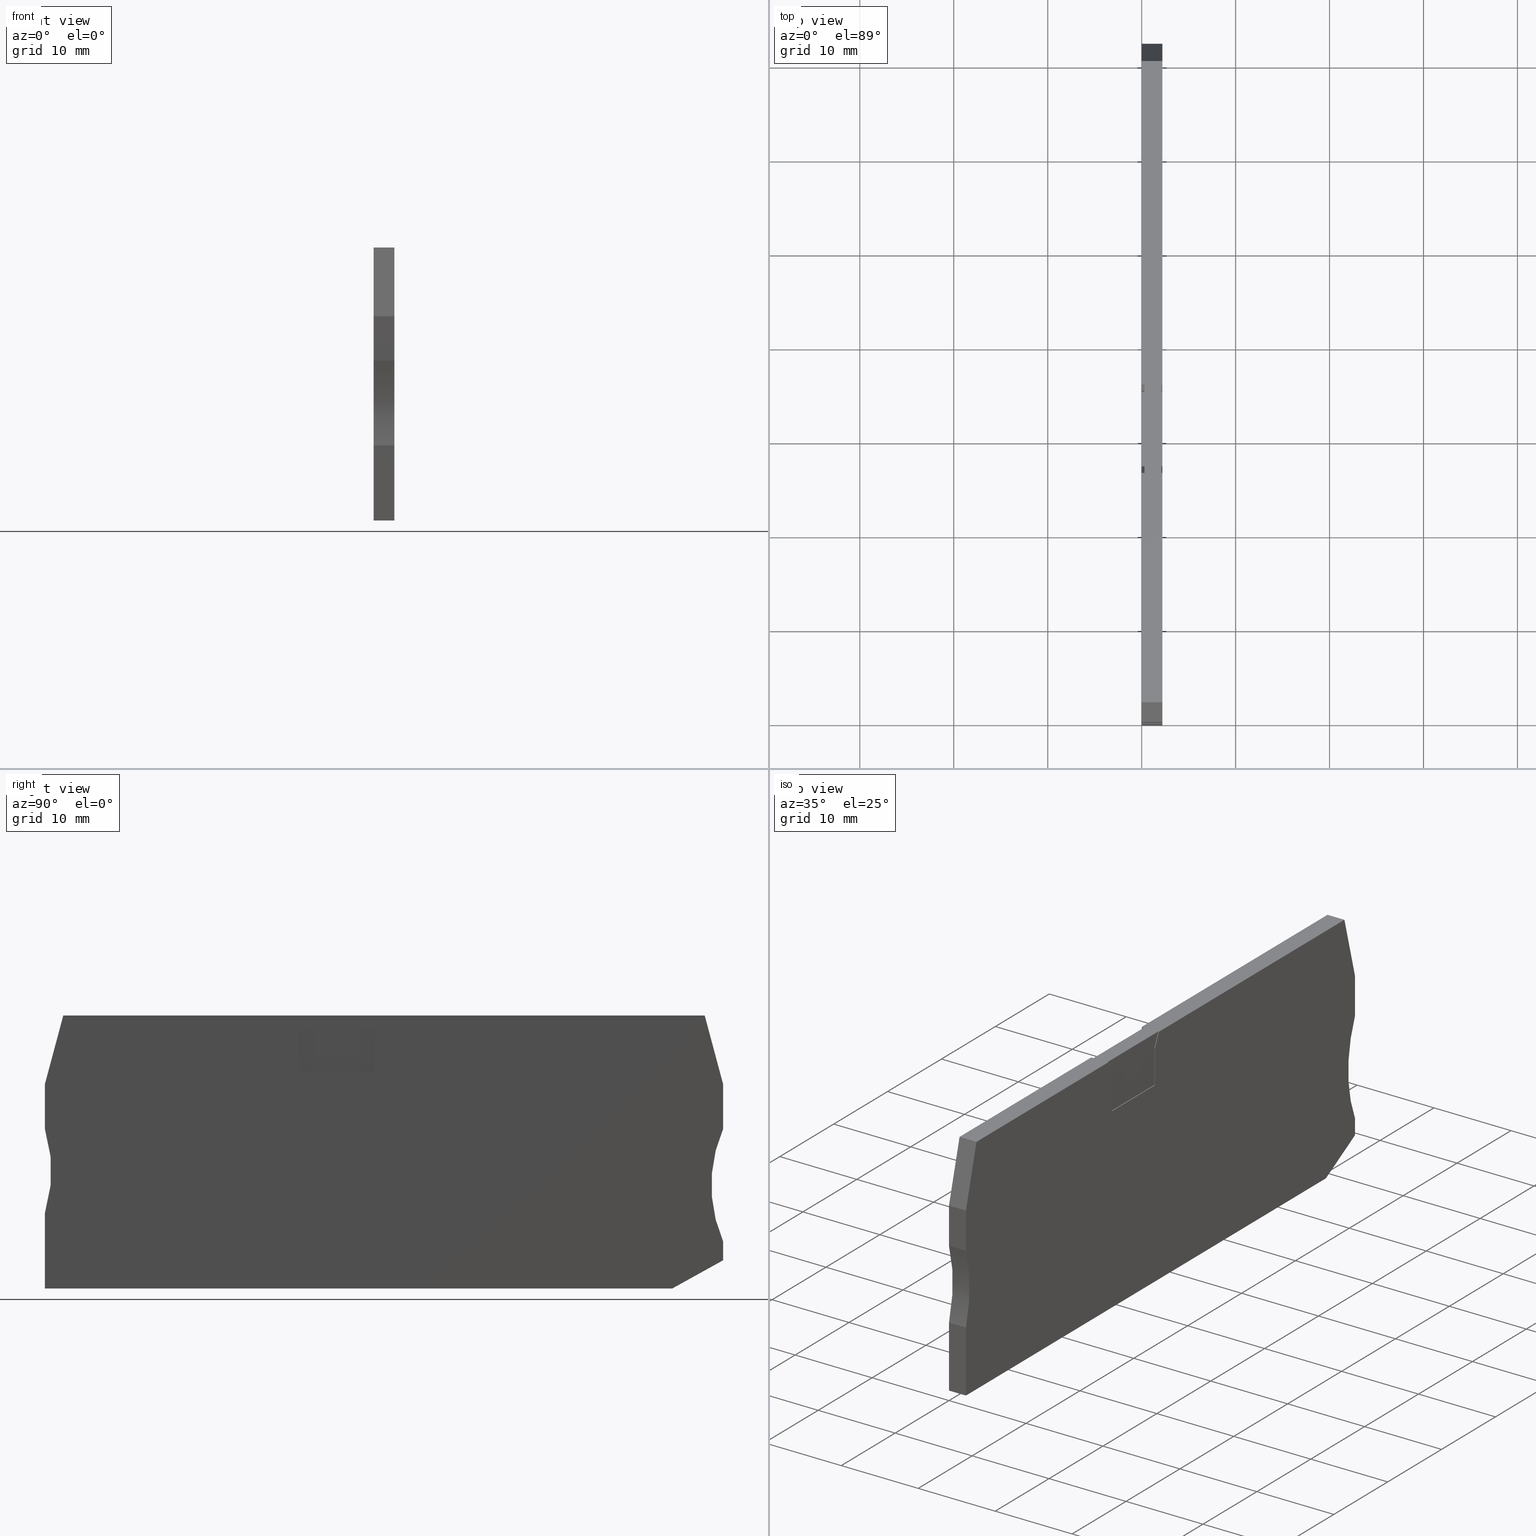
[diagram: canonical four-view strip — front | top / right | iso, engineering-drawing reading convention]
A machine part, canonical four-view strip (front | top / right | iso — engineering-drawing reading convention). The complete STEP part file that produces these views, byte-faithful:
ISO-10303-21;
HEADER;
FILE_DESCRIPTION(('Creo Elements/Direct Modeling STEP Export'),'2;1');
FILE_NAME(
'D:/temp/JobSpoolerServerData/JobServer Files/cc79d442-5544-4a44-942c-a4
7eb3544284/work/output/model.stp','2018-03-19T14:02:13',(''),(''),
'Creo Elements/Direct Modeling STEP processor for AP214 (Solid Model)',
'Creo Elements/Direct Modeling 18.1I  14-Aug-2016 (C) Parametric Technol
ogy GmbH','');
FILE_SCHEMA(('AUTOMOTIVE_DESIGN { 1 0 10303 214 1 1 1 1 }'));
ENDSEC;
DATA;
#10=CARTESIAN_POINT('',(-7.06783277832365,-15.1500000000019,53.17));
#20=DIRECTION('',(-1.,-8.65973959207633E-15,-0.));
#30=DIRECTION('',(-8.65973959207633E-15,1.,0.));
#40=AXIS2_PLACEMENT_3D('',#10,#20,#30);
#50=PLANE('',#40);
#60=CARTESIAN_POINT('',(-7.06783277832367,-12.1300507694265,53.17));
#70=DIRECTION('',(-8.65973959207633E-15,1.,0.));
#80=VECTOR('',#70,1.);
#90=LINE('',#60,#80);
#100=CARTESIAN_POINT('',(-7.06783277832365,-15.1500000000019,53.17));
#110=VERTEX_POINT('',#100);
#120=CARTESIAN_POINT('',(-7.06783277832368,-10.8500000000052,53.17));
#130=VERTEX_POINT('',#120);
#140=EDGE_CURVE('',#110,#130,#90,.T.);
#150=ORIENTED_EDGE('',*,*,#140,.T.);
#160=CARTESIAN_POINT('',(-7.06783277832365,-15.1500000000019,53.17));
#170=DIRECTION('',(0.,0.,1.));
#180=VECTOR('',#170,1.);
#190=LINE('',#160,#180);
#200=CARTESIAN_POINT('',(-7.06783277832365,-15.1500000000019,53.47));
#210=VERTEX_POINT('',#200);
#220=EDGE_CURVE('',#110,#210,#190,.T.);
#230=ORIENTED_EDGE('',*,*,#220,.F.);
#240=CARTESIAN_POINT('',(-7.06783277832368,-12.1300507694268,53.47));
#250=DIRECTION('',(-8.65973959207633E-15,1.,0.));
#260=VECTOR('',#250,1.);
#270=LINE('',#240,#260);
#280=CARTESIAN_POINT('',(-7.06783277832368,-10.8500000000052,53.47));
#290=VERTEX_POINT('',#280);
#300=EDGE_CURVE('',#210,#290,#270,.T.);
#310=ORIENTED_EDGE('',*,*,#300,.F.);
#320=CARTESIAN_POINT('',(-7.06783277832368,-10.8500000000052,53.17));
#330=DIRECTION('',(0.,0.,1.));
#340=VECTOR('',#330,1.);
#350=LINE('',#320,#340);
#360=EDGE_CURVE('',#130,#290,#350,.T.);
#370=ORIENTED_EDGE('',*,*,#360,.T.);
#380=EDGE_LOOP('',(#370,#310,#230,#150));
#390=FACE_OUTER_BOUND('',#380,.T.);
#400=ADVANCED_FACE('',(#390),#50,.F.);
#410=COLOUR_RGB('',0.560784339904785,0.588235318660736,0.600000023841858
);
#420=FILL_AREA_STYLE_COLOUR('',#410);
#430=FILL_AREA_STYLE('',(#420));
#440=SURFACE_STYLE_FILL_AREA(#430);
#450=SURFACE_SIDE_STYLE('',(#440));
#460=SURFACE_STYLE_USAGE(.BOTH.,#450);
#470=PRESENTATION_STYLE_ASSIGNMENT((#460));
#480=CARTESIAN_POINT('',(-4.68088356410453,-22.3521492060807,55.37));
#490=DIRECTION('',(0.,0.,-1.));
#500=DIRECTION('',(-1.,0.,0.));
#510=AXIS2_PLACEMENT_3D('',#480,#490,#500);
#520=PLANE('',#510);
#530=CARTESIAN_POINT('',(38.0321672216756,-12.1300507694265,55.37));
#540=DIRECTION('',(0.,1.,0.));
#550=VECTOR('',#540,1.);
#560=LINE('',#530,#550);
#570=CARTESIAN_POINT('',(38.0321672216756,-21.2000000000027,55.37));
#580=VERTEX_POINT('',#570);
#590=CARTESIAN_POINT('',(38.0321672216756,-16.4655444566078,55.37));
#600=VERTEX_POINT('',#590);
#610=EDGE_CURVE('',#580,#600,#560,.T.);
#620=ORIENTED_EDGE('',*,*,#610,.T.);
#630=CARTESIAN_POINT('',(51.7798943065431,-27.2000000000027,55.37));
#640=DIRECTION('',(0.,0.,1.));
#650=DIRECTION('',(1.,0.,0.));
#660=AXIS2_PLACEMENT_3D('',#630,#640,#650);
#670=CIRCLE('',#660,15.);
#680=CARTESIAN_POINT('',(38.0321672216756,-33.2000000000027,55.37));
#690=VERTEX_POINT('',#680);
#700=EDGE_CURVE('',#580,#690,#670,.T.);
#710=ORIENTED_EDGE('',*,*,#700,.F.);
#720=CARTESIAN_POINT('',(38.0321672216756,-12.1300507694265,55.37));
#730=DIRECTION('',(0.,1.,0.));
#740=VECTOR('',#730,1.);
#750=LINE('',#720,#740);
#760=CARTESIAN_POINT('',(38.0321672216756,-35.2,55.37));
#770=VERTEX_POINT('',#760);
#780=EDGE_CURVE('',#770,#690,#750,.T.);
#790=ORIENTED_EDGE('',*,*,#780,.T.);
#800=CARTESIAN_POINT('',(11.4461541156283,-49.9500920346874,55.37));
#810=DIRECTION('',(0.874435210897321,0.485142311021165,0.));
#820=VECTOR('',#810,1.);
#830=LINE('',#800,#820);
#840=CARTESIAN_POINT('',(32.6248762616859,-38.2000000000015,55.37));
#850=VERTEX_POINT('',#840);
#860=EDGE_CURVE('',#850,#770,#830,.T.);
#870=ORIENTED_EDGE('',*,*,#860,.T.);
#880=CARTESIAN_POINT('',(11.4461541156283,-38.2000000000015,55.37));
#890=DIRECTION('',(1.,0.,0.));
#900=VECTOR('',#890,1.);
#910=LINE('',#880,#900);
#920=CARTESIAN_POINT('',(-34.1678327783247,-38.2000000000015,55.37));
#930=VERTEX_POINT('',#920);
#940=EDGE_CURVE('',#930,#850,#910,.T.);
#950=ORIENTED_EDGE('',*,*,#940,.T.);
#960=CARTESIAN_POINT('',(-34.1678327783247,-12.1300507694265,55.37));
#970=DIRECTION('',(0.,-1.,0.));
#980=VECTOR('',#970,1.);
#990=LINE('',#960,#980);
#1000=CARTESIAN_POINT('',(-34.1678327783247,-30.2000000000027,55.37));
#1010=VERTEX_POINT('',#1000);
#1020=EDGE_CURVE('',#1010,#930,#990,.T.);
#1030=ORIENTED_EDGE('',*,*,#1020,.T.);
#1040=CARTESIAN_POINT('',(-48.4769207995789,-25.7000000000027,55.37));
#1050=DIRECTION('',(0.,0.,1.));
#1060=DIRECTION('',(1.,0.,0.));
#1070=AXIS2_PLACEMENT_3D('',#1040,#1050,#1060);
#1080=CIRCLE('',#1070,15.);
#1090=CARTESIAN_POINT('',(-34.1678327783247,-21.2000000000028,55.37));
#1100=VERTEX_POINT('',#1090);
#1110=EDGE_CURVE('',#1010,#1100,#1080,.T.);
#1120=ORIENTED_EDGE('',*,*,#1110,.F.);
#1130=CARTESIAN_POINT('',(-34.1678327783247,-12.1300507694265,55.37));
#1140=DIRECTION('',(0.,-1.,0.));
#1150=VECTOR('',#1140,1.);
#1160=LINE('',#1130,#1150);
#1170=CARTESIAN_POINT('',(-34.1678327783247,-16.4655444566093,55.37));
#1180=VERTEX_POINT('',#1170);
#1190=EDGE_CURVE('',#1180,#1100,#1160,.T.);
#1200=ORIENTED_EDGE('',*,*,#1190,.T.);
#1210=CARTESIAN_POINT('',(-33.0061407460509,-12.1300507694265,55.37));
#1220=DIRECTION('',(-0.258819045103118,-0.965925826288908,0.));
#1230=VECTOR('',#1220,1.);
#1240=LINE('',#1210,#1230);
#1250=CARTESIAN_POINT('',(-32.2076385489778,-9.15000000000164,55.37));
#1260=VERTEX_POINT('',#1250);
#1270=EDGE_CURVE('',#1260,#1180,#1240,.T.);
#1280=ORIENTED_EDGE('',*,*,#1270,.T.);
#1290=CARTESIAN_POINT('',(11.4461541156283,-9.15000000000164,55.37));
#1300=DIRECTION('',(-1.,0.,0.));
#1310=VECTOR('',#1300,1.);
#1320=LINE('',#1290,#1310);
#1330=CARTESIAN_POINT('',(-7.78633249760507,-9.15000000000164,55.37));
#1340=VERTEX_POINT('',#1330);
#1350=EDGE_CURVE('',#1340,#1260,#1320,.T.);
#1360=ORIENTED_EDGE('',*,*,#1350,.T.);
#1370=CARTESIAN_POINT('',(-6.52682329685711,-12.1300507694265,55.37));
#1380=DIRECTION('',(0.389303997086196,-0.92110933002153,0.));
#1390=VECTOR('',#1380,1.);
#1400=LINE('',#1370,#1390);
#1410=CARTESIAN_POINT('',(-7.06783277832368,-10.8500000000052,55.37));
#1420=VERTEX_POINT('',#1410);
#1430=EDGE_CURVE('',#1340,#1420,#1400,.T.);
#1440=ORIENTED_EDGE('',*,*,#1430,.F.);
#1450=CARTESIAN_POINT('',(-7.06783277832367,-12.1300507694265,55.37));
#1460=DIRECTION('',(8.65973959207633E-15,-1.,0.));
#1470=VECTOR('',#1460,1.);
#1480=LINE('',#1450,#1470);
#1490=CARTESIAN_POINT('',(-7.06783277832365,-15.1500000000019,55.37));
#1500=VERTEX_POINT('',#1490);
#1510=EDGE_CURVE('',#1420,#1500,#1480,.T.);
#1520=ORIENTED_EDGE('',*,*,#1510,.F.);
#1530=CARTESIAN_POINT('',(11.4461541156283,-15.1500000000019,55.37));
#1540=DIRECTION('',(1.,-5.55111512312593E-16,0.));
#1550=VECTOR('',#1540,1.);
#1560=LINE('',#1530,#1550);
#1570=CARTESIAN_POINT('',(0.932167221676103,-15.1500000000019,55.37));
#1580=VERTEX_POINT('',#1570);
#1590=EDGE_CURVE('',#1500,#1580,#1560,.T.);
#1600=ORIENTED_EDGE('',*,*,#1590,.F.);
#1610=CARTESIAN_POINT('',(0.932167221676107,-12.1300507694265,55.37));
#1620=DIRECTION('',(1.05471187339379E-15,1.,0.));
#1630=VECTOR('',#1620,1.);
#1640=LINE('',#1610,#1630);
#1650=CARTESIAN_POINT('',(0.932167221676108,-10.8499999999525,55.37));
#1660=VERTEX_POINT('',#1650);
#1670=EDGE_CURVE('',#1580,#1660,#1640,.T.);
#1680=ORIENTED_EDGE('',*,*,#1670,.F.);
#1690=CARTESIAN_POINT('',(0.391157740167616,-12.1300507694265,55.37));
#1700=DIRECTION('',(0.389303997098189,0.921109330016461,0.));
#1710=VECTOR('',#1700,1.);
#1720=LINE('',#1690,#1710);
#1730=CARTESIAN_POINT('',(1.65066694096131,-9.15000000000164,55.37));
#1740=VERTEX_POINT('',#1730);
#1750=EDGE_CURVE('',#1660,#1740,#1720,.T.);
#1760=ORIENTED_EDGE('',*,*,#1750,.F.);
#1770=CARTESIAN_POINT('',(36.0719729923292,-9.15000000000164,55.37));
#1780=VERTEX_POINT('',#1770);
#1790=EDGE_CURVE('',#1780,#1740,#1320,.T.);
#1800=ORIENTED_EDGE('',*,*,#1790,.T.);
#1810=CARTESIAN_POINT('',(36.8704751894023,-12.1300507694265,55.37));
#1820=DIRECTION('',(-0.258819045103111,0.96592582628891,0.));
#1830=VECTOR('',#1820,1.);
#1840=LINE('',#1810,#1830);
#1850=EDGE_CURVE('',#600,#1780,#1840,.T.);
#1860=ORIENTED_EDGE('',*,*,#1850,.T.);
#1870=EDGE_LOOP('',(#1860,#1800,#1760,#1680,#1600,#1520,#1440,#1360,
#1280,#1200,#1120,#1030,#950,#870,#790,#710,#620));
#1880=FACE_OUTER_BOUND('',#1870,.T.);
#1890=ADVANCED_FACE('',(#1880),#520,.F.);
#1900=COLOUR_RGB('',0.560784339904785,0.588235318660736,
0.600000023841858);
#1910=FILL_AREA_STYLE_COLOUR('',#1900);
#1920=FILL_AREA_STYLE('',(#1910));
#1930=SURFACE_STYLE_FILL_AREA(#1920);
#1940=SURFACE_SIDE_STYLE('',(#1930));
#1950=SURFACE_STYLE_USAGE(.BOTH.,#1940);
#1960=PRESENTATION_STYLE_ASSIGNMENT((#1950));
#1970=CARTESIAN_POINT('',(0.932167221676108,-10.8499999999525,53.17));
#1980=DIRECTION('',(1.,-1.05471187339379E-15,0.));
#1990=DIRECTION('',(-1.05471187339379E-15,-1.,0.));
#2000=AXIS2_PLACEMENT_3D('',#1970,#1980,#1990);
#2010=PLANE('',#2000);
#2020=CARTESIAN_POINT('',(0.932167221676107,-12.1300507694265,53.17));
#2030=DIRECTION('',(-1.05471187339379E-15,-1.,0.));
#2040=VECTOR('',#2030,1.);
#2050=LINE('',#2020,#2040);
#2060=CARTESIAN_POINT('',(0.932167221676108,-10.8499999999525,53.17));
#2070=VERTEX_POINT('',#2060);
#2080=CARTESIAN_POINT('',(0.932167221676103,-15.1500000000019,53.17));
#2090=VERTEX_POINT('',#2080);
#2100=EDGE_CURVE('',#2070,#2090,#2050,.T.);
#2110=ORIENTED_EDGE('',*,*,#2100,.T.);
#2120=CARTESIAN_POINT('',(0.932167221676108,-10.8499999999525,53.17));
#2130=DIRECTION('',(0.,0.,1.));
#2140=VECTOR('',#2130,1.);
#2150=LINE('',#2120,#2140);
#2160=CARTESIAN_POINT('',(0.932167221676108,-10.8499999999525,53.47));
#2170=VERTEX_POINT('',#2160);
#2180=EDGE_CURVE('',#2070,#2170,#2150,.T.);
#2190=ORIENTED_EDGE('',*,*,#2180,.F.);
#2200=CARTESIAN_POINT('',(0.932167221676098,-12.1300507694268,53.47));
#2210=DIRECTION('',(-1.05471187339379E-15,-1.,0.));
#2220=VECTOR('',#2210,1.);
#2230=LINE('',#2200,#2220);
#2240=CARTESIAN_POINT('',(0.932167221676094,-15.1500000000019,53.47));
#2250=VERTEX_POINT('',#2240);
#2260=EDGE_CURVE('',#2170,#2250,#2230,.T.);
#2270=ORIENTED_EDGE('',*,*,#2260,.F.);
#2280=CARTESIAN_POINT('',(0.932167221676094,-15.1500000000019,53.17));
#2290=DIRECTION('',(0.,0.,1.));
#2300=VECTOR('',#2290,1.);
#2310=LINE('',#2280,#2300);
#2320=EDGE_CURVE('',#2090,#2250,#2310,.T.);
#2330=ORIENTED_EDGE('',*,*,#2320,.T.);
#2340=EDGE_LOOP('',(#2330,#2270,#2190,#2110));
#2350=FACE_OUTER_BOUND('',#2340,.T.);
#2360=ADVANCED_FACE('',(#2350),#2010,.F.);
#2370=COLOUR_RGB('',0.560784339904785,0.588235318660736,
0.600000023841858);
#2380=FILL_AREA_STYLE_COLOUR('',#2370);
#2390=FILL_AREA_STYLE('',(#2380));
#2400=SURFACE_STYLE_FILL_AREA(#2390);
#2410=SURFACE_SIDE_STYLE('',(#2400));
#2420=SURFACE_STYLE_USAGE(.BOTH.,#2410);
#2430=PRESENTATION_STYLE_ASSIGNMENT((#2420));
#2440=CARTESIAN_POINT('',(1.65066694096119,-9.15000000000193,53.17));
#2450=DIRECTION('',(0.921109330016461,-0.389303997098189,0.));
#2460=DIRECTION('',(-0.389303997098189,-0.921109330016461,0.));
#2470=AXIS2_PLACEMENT_3D('',#2440,#2450,#2460);
#2480=PLANE('',#2470);
#2490=CARTESIAN_POINT('',(0.391157740167616,-12.1300507694265,53.17));
#2500=DIRECTION('',(-0.389303997098189,-0.921109330016461,0.));
#2510=VECTOR('',#2500,1.);
#2520=LINE('',#2490,#2510);
#2530=CARTESIAN_POINT('',(1.65066694096119,-9.15000000000164,53.17));
#2540=VERTEX_POINT('',#2530);
#2550=EDGE_CURVE('',#2540,#2070,#2520,.T.);
#2560=ORIENTED_EDGE('',*,*,#2550,.T.);
#2570=CARTESIAN_POINT('',(1.65066694096131,-9.15000000000164,53.17));
#2580=DIRECTION('',(0.,0.,-1.));
#2590=VECTOR('',#2580,1.);
#2600=LINE('',#2570,#2590);
#2610=CARTESIAN_POINT('',(1.65066694096119,-9.15000000000164,53.47));
#2620=VERTEX_POINT('',#2610);
#2630=EDGE_CURVE('',#2620,#2540,#2600,.T.);
#2640=ORIENTED_EDGE('',*,*,#2630,.T.);
#2650=CARTESIAN_POINT('',(0.391157740167493,-12.1300507694268,53.47));
#2660=DIRECTION('',(0.389303997098189,0.921109330016461,0.));
#2670=VECTOR('',#2660,1.);
#2680=LINE('',#2650,#2670);
#2690=EDGE_CURVE('',#2170,#2620,#2680,.T.);
#2700=ORIENTED_EDGE('',*,*,#2690,.T.);
#2710=ORIENTED_EDGE('',*,*,#2180,.T.);
#2720=EDGE_LOOP('',(#2710,#2700,#2640,#2560));
#2730=FACE_OUTER_BOUND('',#2720,.T.);
#2740=ADVANCED_FACE('',(#2730),#2480,.F.);
#2750=COLOUR_RGB('',0.560784339904785,0.588235318660736,
0.600000023841858);
#2760=FILL_AREA_STYLE_COLOUR('',#2750);
#2770=FILL_AREA_STYLE('',(#2760));
#2780=SURFACE_STYLE_FILL_AREA(#2770);
#2790=SURFACE_SIDE_STYLE('',(#2780));
#2800=SURFACE_STYLE_USAGE(.BOTH.,#2790);
#2810=PRESENTATION_STYLE_ASSIGNMENT((#2800));
#2820=CARTESIAN_POINT('',(-34.1678327783247,-30.4972542057941,55.37));
#2830=DIRECTION('',(-1.,0.,0.));
#2840=DIRECTION('',(0.,1.,0.));
#2850=AXIS2_PLACEMENT_3D('',#2820,#2830,#2840);
#2860=PLANE('',#2850);
#2870=CARTESIAN_POINT('',(-34.1678327783247,-38.2000000000015,53.17));
#2880=DIRECTION('',(0.,0.,1.));
#2890=VECTOR('',#2880,1.);
#2900=LINE('',#2870,#2890);
#2910=CARTESIAN_POINT('',(-34.1678327783247,-38.2000000000015,53.17));
#2920=VERTEX_POINT('',#2910);
#2930=EDGE_CURVE('',#2920,#930,#2900,.T.);
#2940=ORIENTED_EDGE('',*,*,#2930,.T.);
#2950=CARTESIAN_POINT('',(-34.1678327783247,-12.1300507694265,53.17));
#2960=DIRECTION('',(0.,1.,0.));
#2970=VECTOR('',#2960,1.);
#2980=LINE('',#2950,#2970);
#2990=CARTESIAN_POINT('',(-34.1678327783247,-30.2000000000027,53.17));
#3000=VERTEX_POINT('',#2990);
#3010=EDGE_CURVE('',#2920,#3000,#2980,.T.);
#3020=ORIENTED_EDGE('',*,*,#3010,.F.);
#3030=CARTESIAN_POINT('',(-34.1678327783247,-30.2000000000027,55.37));
#3040=DIRECTION('',(0.,0.,1.));
#3050=VECTOR('',#3040,1.);
#3060=LINE('',#3030,#3050);
#3070=EDGE_CURVE('',#3000,#1010,#3060,.T.);
#3080=ORIENTED_EDGE('',*,*,#3070,.F.);
#3090=ORIENTED_EDGE('',*,*,#1020,.F.);
#3100=EDGE_LOOP('',(#3090,#3080,#3020,#2940));
#3110=FACE_OUTER_BOUND('',#3100,.T.);
#3120=ADVANCED_FACE('',(#3110),#2860,.T.);
#3130=COLOUR_RGB('',0.560784339904785,0.588235318660736,
0.600000023841858);
#3140=FILL_AREA_STYLE_COLOUR('',#3130);
#3150=FILL_AREA_STYLE('',(#3140));
#3160=SURFACE_STYLE_FILL_AREA(#3150);
#3170=SURFACE_SIDE_STYLE('',(#3160));
#3180=SURFACE_STYLE_USAGE(.BOTH.,#3170);
#3190=PRESENTATION_STYLE_ASSIGNMENT((#3180));
#3200=CARTESIAN_POINT('',(-48.4769207995789,-25.7000000000027,55.37));
#3210=DIRECTION('',(0.,0.,1.));
#3220=DIRECTION('',(1.,0.,0.));
#3230=AXIS2_PLACEMENT_3D('',#3200,#3210,#3220);
#3240=CYLINDRICAL_SURFACE('',#3230,15.);
#3250=ORIENTED_EDGE('',*,*,#3070,.T.);
#3260=CARTESIAN_POINT('',(-48.4769207995789,-25.7000000000027,53.17));
#3270=DIRECTION('',(0.,0.,1.));
#3280=DIRECTION('',(1.,0.,0.));
#3290=AXIS2_PLACEMENT_3D('',#3260,#3270,#3280);
#3300=CIRCLE('',#3290,15.);
#3310=CARTESIAN_POINT('',(-34.1678327783247,-21.2000000000028,53.17));
#3320=VERTEX_POINT('',#3310);
#3330=EDGE_CURVE('',#3000,#3320,#3300,.T.);
#3340=ORIENTED_EDGE('',*,*,#3330,.F.);
#3350=CARTESIAN_POINT('',(-34.1678327783247,-21.2000000000028,55.37));
#3360=DIRECTION('',(0.,0.,1.));
#3370=VECTOR('',#3360,1.);
#3380=LINE('',#3350,#3370);
#3390=EDGE_CURVE('',#3320,#1100,#3380,.T.);
#3400=ORIENTED_EDGE('',*,*,#3390,.F.);
#3410=ORIENTED_EDGE('',*,*,#1110,.T.);
#3420=EDGE_LOOP('',(#3410,#3400,#3340,#3250));
#3430=FACE_OUTER_BOUND('',#3420,.T.);
#3440=ADVANCED_FACE('',(#3430),#3240,.F.);
#3450=COLOUR_RGB('',0.560784339904785,0.588235318660736,
0.600000023841858);
#3460=FILL_AREA_STYLE_COLOUR('',#3450);
#3470=FILL_AREA_STYLE('',(#3460));
#3480=SURFACE_STYLE_FILL_AREA(#3470);
#3490=SURFACE_SIDE_STYLE('',(#3480));
#3500=SURFACE_STYLE_USAGE(.BOTH.,#3490);
#3510=PRESENTATION_STYLE_ASSIGNMENT((#3500));
#3520=CARTESIAN_POINT('',(51.7798943065431,-27.2000000000027,55.37));
#3530=DIRECTION('',(0.,0.,1.));
#3540=DIRECTION('',(1.,0.,0.));
#3550=AXIS2_PLACEMENT_3D('',#3520,#3530,#3540);
#3560=CYLINDRICAL_SURFACE('',#3550,15.);
#3570=CARTESIAN_POINT('',(38.0321672216756,-21.2000000000027,55.37));
#3580=DIRECTION('',(0.,0.,1.));
#3590=VECTOR('',#3580,1.);
#3600=LINE('',#3570,#3590);
#3610=CARTESIAN_POINT('',(38.0321672216756,-21.2000000000027,53.17));
#3620=VERTEX_POINT('',#3610);
#3630=EDGE_CURVE('',#3620,#580,#3600,.T.);
#3640=ORIENTED_EDGE('',*,*,#3630,.T.);
#3650=CARTESIAN_POINT('',(51.7798943065431,-27.2000000000027,53.17));
#3660=DIRECTION('',(0.,0.,1.));
#3670=DIRECTION('',(1.,0.,0.));
#3680=AXIS2_PLACEMENT_3D('',#3650,#3660,#3670);
#3690=CIRCLE('',#3680,15.);
#3700=CARTESIAN_POINT('',(38.0321672216756,-33.2000000000027,53.17));
#3710=VERTEX_POINT('',#3700);
#3720=EDGE_CURVE('',#3620,#3710,#3690,.T.);
#3730=ORIENTED_EDGE('',*,*,#3720,.F.);
#3740=CARTESIAN_POINT('',(38.0321672216756,-33.2000000000027,55.37));
#3750=DIRECTION('',(0.,0.,1.));
#3760=VECTOR('',#3750,1.);
#3770=LINE('',#3740,#3760);
#3780=EDGE_CURVE('',#3710,#690,#3770,.T.);
#3790=ORIENTED_EDGE('',*,*,#3780,.F.);
#3800=ORIENTED_EDGE('',*,*,#700,.T.);
#3810=EDGE_LOOP('',(#3800,#3790,#3730,#3640));
#3820=FACE_OUTER_BOUND('',#3810,.T.);
#3830=ADVANCED_FACE('',(#3820),#3560,.F.);
#3840=COLOUR_RGB('',0.560784339904785,0.588235318660736,
0.600000023841858);
#3850=FILL_AREA_STYLE_COLOUR('',#3840);
#3860=FILL_AREA_STYLE('',(#3850));
#3870=SURFACE_STYLE_FILL_AREA(#3860);
#3880=SURFACE_SIDE_STYLE('',(#3870));
#3890=SURFACE_STYLE_USAGE(.BOTH.,#3880);
#3900=PRESENTATION_STYLE_ASSIGNMENT((#3890));
#3910=CARTESIAN_POINT('',(-7.06783277832368,-10.8500000000052,55.37));
#3920=DIRECTION('',(0.92110933002153,0.389303997086196,0.));
#3930=DIRECTION('',(0.389303997086196,-0.92110933002153,0.));
#3940=AXIS2_PLACEMENT_3D('',#3910,#3920,#3930);
#3950=PLANE('',#3940);
#3960=CARTESIAN_POINT('',(-7.78633249760507,-9.15000000000164,53.17));
#3970=DIRECTION('',(0.,0.,-1.));
#3980=VECTOR('',#3970,1.);
#3990=LINE('',#3960,#3980);
#4000=CARTESIAN_POINT('',(-7.786332497605,-9.15000000000164,55.27));
#4010=VERTEX_POINT('',#4000);
#4020=EDGE_CURVE('',#1340,#4010,#3990,.T.);
#4030=ORIENTED_EDGE('',*,*,#4020,.F.);
#4040=CARTESIAN_POINT('',(-6.52682329685704,-12.1300507694268,55.27));
#4050=DIRECTION('',(0.389303997086196,-0.92110933002153,0.));
#4060=VECTOR('',#4050,1.);
#4070=LINE('',#4040,#4060);
#4080=CARTESIAN_POINT('',(-7.06783277832368,-10.8500000000052,55.27));
#4090=VERTEX_POINT('',#4080);
#4100=EDGE_CURVE('',#4010,#4090,#4070,.T.);
#4110=ORIENTED_EDGE('',*,*,#4100,.F.);
#4120=CARTESIAN_POINT('',(-7.06783277832368,-10.8500000000052,55.37));
#4130=DIRECTION('',(0.,0.,-1.));
#4140=VECTOR('',#4130,1.);
#4150=LINE('',#4120,#4140);
#4160=EDGE_CURVE('',#1420,#4090,#4150,.T.);
#4170=ORIENTED_EDGE('',*,*,#4160,.T.);
#4180=ORIENTED_EDGE('',*,*,#1430,.T.);
#4190=EDGE_LOOP('',(#4180,#4170,#4110,#4030));
#4200=FACE_OUTER_BOUND('',#4190,.T.);
#4210=ADVANCED_FACE('',(#4200),#3950,.T.);
#4220=COLOUR_RGB('',0.560784339904785,0.588235318660736,
0.600000023841858);
#4230=FILL_AREA_STYLE_COLOUR('',#4220);
#4240=FILL_AREA_STYLE('',(#4230));
#4250=SURFACE_STYLE_FILL_AREA(#4240);
#4260=SURFACE_SIDE_STYLE('',(#4250));
#4270=SURFACE_STYLE_USAGE(.BOTH.,#4260);
#4280=PRESENTATION_STYLE_ASSIGNMENT((#4270));
#4290=CARTESIAN_POINT('',(0.96970121366197,-34.6750000000019,53.47));
#4300=DIRECTION('',(0.,0.,1.));
#4310=DIRECTION('',(1.,0.,0.));
#4320=AXIS2_PLACEMENT_3D('',#4290,#4300,#4310);
#4330=PLANE('',#4320);
#4340=CARTESIAN_POINT('',(-6.52682329685704,-12.1300507694268,53.47));
#4350=DIRECTION('',(0.389303997086196,-0.92110933002153,0.));
#4360=VECTOR('',#4350,1.);
#4370=LINE('',#4340,#4360);
#4380=CARTESIAN_POINT('',(-7.786332497605,-9.15000000000164,53.47));
#4390=VERTEX_POINT('',#4380);
#4400=EDGE_CURVE('',#4390,#290,#4370,.T.);
#4410=ORIENTED_EDGE('',*,*,#4400,.F.);
#4420=ORIENTED_EDGE('',*,*,#300,.T.);
#4430=CARTESIAN_POINT('',(11.4461541156283,-15.1500000000019,53.47));
#4440=DIRECTION('',(1.,-5.55111512312593E-16,0.));
#4450=VECTOR('',#4440,1.);
#4460=LINE('',#4430,#4450);
#4470=EDGE_CURVE('',#210,#2250,#4460,.T.);
#4480=ORIENTED_EDGE('',*,*,#4470,.F.);
#4490=ORIENTED_EDGE('',*,*,#2260,.T.);
#4500=ORIENTED_EDGE('',*,*,#2690,.F.);
#4510=CARTESIAN_POINT('',(11.4461541156283,-9.15000000000164,53.47));
#4520=DIRECTION('',(1.,0.,0.));
#4530=VECTOR('',#4520,1.);
#4540=LINE('',#4510,#4530);
#4550=EDGE_CURVE('',#4390,#2620,#4540,.T.);
#4560=ORIENTED_EDGE('',*,*,#4550,.T.);
#4570=EDGE_LOOP('',(#4560,#4500,#4490,#4480,#4420,#4410));
#4580=FACE_OUTER_BOUND('',#4570,.T.);
#4590=ADVANCED_FACE('',(#4580),#4330,.F.);
#4600=COLOUR_RGB('',0.560784339904785,0.588235318660736,
0.600000023841858);
#4610=FILL_AREA_STYLE_COLOUR('',#4600);
#4620=FILL_AREA_STYLE('',(#4610));
#4630=SURFACE_STYLE_FILL_AREA(#4620);
#4640=SURFACE_SIDE_STYLE('',(#4630));
#4650=SURFACE_STYLE_USAGE(.BOTH.,#4640);
#4660=PRESENTATION_STYLE_ASSIGNMENT((#4650));
#4670=CARTESIAN_POINT('',(33.077519827691,-37.9488704217962,55.37));
#4680=DIRECTION('',(0.485142311021165,-0.874435210897321,0.));
#4690=DIRECTION('',(-0.874435210897321,-0.485142311021165,0.));
#4700=AXIS2_PLACEMENT_3D('',#4670,#4680,#4690);
#4710=PLANE('',#4700);
#4720=CARTESIAN_POINT('',(38.0321672216756,-35.2,53.17));
#4730=DIRECTION('',(0.,0.,1.));
#4740=VECTOR('',#4730,1.);
#4750=LINE('',#4720,#4740);
#4760=CARTESIAN_POINT('',(38.0321672216756,-35.2,53.17));
#4770=VERTEX_POINT('',#4760);
#4780=EDGE_CURVE('',#4770,#770,#4750,.T.);
#4790=ORIENTED_EDGE('',*,*,#4780,.T.);
#4800=CARTESIAN_POINT('',(11.4461541156283,-49.9500920346874,53.17));
#4810=DIRECTION('',(-0.874435210897321,-0.485142311021165,0.));
#4820=VECTOR('',#4810,1.);
#4830=LINE('',#4800,#4820);
#4840=CARTESIAN_POINT('',(32.6248762616859,-38.2000000000015,53.17));
#4850=VERTEX_POINT('',#4840);
#4860=EDGE_CURVE('',#4770,#4850,#4830,.T.);
#4870=ORIENTED_EDGE('',*,*,#4860,.F.);
#4880=CARTESIAN_POINT('',(32.6248762616859,-38.2000000000015,53.17));
#4890=DIRECTION('',(0.,0.,1.));
#4900=VECTOR('',#4890,1.);
#4910=LINE('',#4880,#4900);
#4920=EDGE_CURVE('',#4850,#850,#4910,.T.);
#4930=ORIENTED_EDGE('',*,*,#4920,.F.);
#4940=ORIENTED_EDGE('',*,*,#860,.F.);
#4950=EDGE_LOOP('',(#4940,#4930,#4870,#4790));
#4960=FACE_OUTER_BOUND('',#4950,.T.);
#4970=ADVANCED_FACE('',(#4960),#4710,.T.);
#4980=COLOUR_RGB('',0.560784339904785,0.588235318660736,
0.600000023841858);
#4990=FILL_AREA_STYLE_COLOUR('',#4980);
#5000=FILL_AREA_STYLE('',(#4990));
#5010=SURFACE_STYLE_FILL_AREA(#5000);
#5020=SURFACE_SIDE_STYLE('',(#5010));
#5030=SURFACE_STYLE_USAGE(.BOTH.,#5020);
#5040=PRESENTATION_STYLE_ASSIGNMENT((#5030));
#5050=CARTESIAN_POINT('',(32.578459389798,-38.2000000000015,53.17));
#5060=DIRECTION('',(-0.,-1.,-0.));
#5070=DIRECTION('',(-1.,0.,0.));
#5080=AXIS2_PLACEMENT_3D('',#5050,#5060,#5070);
#5090=PLANE('',#5080);
#5100=ORIENTED_EDGE('',*,*,#940,.F.);
#5110=ORIENTED_EDGE('',*,*,#4920,.T.);
#5120=CARTESIAN_POINT('',(11.4461541156283,-38.2000000000015,53.17));
#5130=DIRECTION('',(-1.,0.,0.));
#5140=VECTOR('',#5130,1.);
#5150=LINE('',#5120,#5140);
#5160=EDGE_CURVE('',#4850,#2920,#5150,.T.);
#5170=ORIENTED_EDGE('',*,*,#5160,.F.);
#5180=ORIENTED_EDGE('',*,*,#2930,.F.);
#5190=EDGE_LOOP('',(#5180,#5170,#5110,#5100));
#5200=FACE_OUTER_BOUND('',#5190,.T.);
#5210=ADVANCED_FACE('',(#5200),#5090,.T.);
#5220=COLOUR_RGB('',0.560784339904785,0.588235318660736,
0.600000023841858);
#5230=FILL_AREA_STYLE_COLOUR('',#5220);
#5240=FILL_AREA_STYLE('',(#5230));
#5250=SURFACE_STYLE_FILL_AREA(#5240);
#5260=SURFACE_SIDE_STYLE('',(#5250));
#5270=SURFACE_STYLE_USAGE(.BOTH.,#5260);
#5280=PRESENTATION_STYLE_ASSIGNMENT((#5270));
#5290=CARTESIAN_POINT('',(0.932167221676094,-15.1500000000019,55.37));
#5300=DIRECTION('',(5.55111512312593E-16,1.,0.));
#5310=DIRECTION('',(1.,-5.55111512312593E-16,0.));
#5320=AXIS2_PLACEMENT_3D('',#5290,#5300,#5310);
#5330=PLANE('',#5320);
#5340=CARTESIAN_POINT('',(-7.06783277832365,-15.1500000000019,55.37));
#5350=DIRECTION('',(0.,0.,-1.));
#5360=VECTOR('',#5350,1.);
#5370=LINE('',#5340,#5360);
#5380=CARTESIAN_POINT('',(-7.06783277832365,-15.1500000000019,55.27));
#5390=VERTEX_POINT('',#5380);
#5400=EDGE_CURVE('',#1500,#5390,#5370,.T.);
#5410=ORIENTED_EDGE('',*,*,#5400,.F.);
#5420=CARTESIAN_POINT('',(11.4461541156283,-15.1500000000019,55.27));
#5430=DIRECTION('',(1.,-5.55111512312593E-16,0.));
#5440=VECTOR('',#5430,1.);
#5450=LINE('',#5420,#5440);
#5460=CARTESIAN_POINT('',(0.932167221676094,-15.1500000000019,55.27));
#5470=VERTEX_POINT('',#5460);
#5480=EDGE_CURVE('',#5390,#5470,#5450,.T.);
#5490=ORIENTED_EDGE('',*,*,#5480,.F.);
#5500=CARTESIAN_POINT('',(0.932167221676094,-15.1500000000019,55.37));
#5510=DIRECTION('',(0.,0.,-1.));
#5520=VECTOR('',#5510,1.);
#5530=LINE('',#5500,#5520);
#5540=EDGE_CURVE('',#1580,#5470,#5530,.T.);
#5550=ORIENTED_EDGE('',*,*,#5540,.T.);
#5560=ORIENTED_EDGE('',*,*,#1590,.T.);
#5570=EDGE_LOOP('',(#5560,#5550,#5490,#5410));
#5580=FACE_OUTER_BOUND('',#5570,.T.);
#5590=ADVANCED_FACE('',(#5580),#5330,.T.);
#5600=COLOUR_RGB('',0.560784339904785,0.588235318660736,
0.600000023841858);
#5610=FILL_AREA_STYLE_COLOUR('',#5600);
#5620=FILL_AREA_STYLE('',(#5610));
#5630=SURFACE_STYLE_FILL_AREA(#5620);
#5640=SURFACE_SIDE_STYLE('',(#5630));
#5650=SURFACE_STYLE_USAGE(.BOTH.,#5640);
#5660=PRESENTATION_STYLE_ASSIGNMENT((#5650));
#5670=CARTESIAN_POINT('',(38.01513013482,-16.4019611828501,55.37));
#5680=DIRECTION('',(0.96592582628891,0.258819045103111,0.));
#5690=DIRECTION('',(0.258819045103111,-0.96592582628891,0.));
#5700=AXIS2_PLACEMENT_3D('',#5670,#5680,#5690);
#5710=PLANE('',#5700);
#5720=CARTESIAN_POINT('',(36.0719729923292,-9.15000000000164,53.17));
#5730=DIRECTION('',(0.,0.,1.));
#5740=VECTOR('',#5730,1.);
#5750=LINE('',#5720,#5740);
#5760=CARTESIAN_POINT('',(36.0719729923292,-9.15000000000164,53.17));
#5770=VERTEX_POINT('',#5760);
#5780=EDGE_CURVE('',#5770,#1780,#5750,.T.);
#5790=ORIENTED_EDGE('',*,*,#5780,.T.);
#5800=CARTESIAN_POINT('',(36.8704751894023,-12.1300507694265,53.17));
#5810=DIRECTION('',(0.258819045103111,-0.96592582628891,0.));
#5820=VECTOR('',#5810,1.);
#5830=LINE('',#5800,#5820);
#5840=CARTESIAN_POINT('',(38.0321672216756,-16.4655444566078,53.17));
#5850=VERTEX_POINT('',#5840);
#5860=EDGE_CURVE('',#5770,#5850,#5830,.T.);
#5870=ORIENTED_EDGE('',*,*,#5860,.F.);
#5880=CARTESIAN_POINT('',(38.0321672216756,-16.4655444566078,53.17));
#5890=DIRECTION('',(0.,0.,1.));
#5900=VECTOR('',#5890,1.);
#5910=LINE('',#5880,#5900);
#5920=EDGE_CURVE('',#5850,#600,#5910,.T.);
#5930=ORIENTED_EDGE('',*,*,#5920,.F.);
#5940=ORIENTED_EDGE('',*,*,#1850,.F.);
#5950=EDGE_LOOP('',(#5940,#5930,#5870,#5790));
#5960=FACE_OUTER_BOUND('',#5950,.T.);
#5970=ADVANCED_FACE('',(#5960),#5710,.T.);
#5980=COLOUR_RGB('',0.560784339904785,0.588235318660736,
0.600000023841858);
#5990=FILL_AREA_STYLE_COLOUR('',#5980);
#6000=FILL_AREA_STYLE('',(#5990));
#6010=SURFACE_STYLE_FILL_AREA(#6000);
#6020=SURFACE_SIDE_STYLE('',(#6010));
#6030=SURFACE_STYLE_USAGE(.BOTH.,#6020);
#6040=PRESENTATION_STYLE_ASSIGNMENT((#6030));
#6050=CARTESIAN_POINT('',(-4.68088356410453,-22.3521492060807,53.17));
#6060=DIRECTION('',(0.,0.,-1.));
#6070=DIRECTION('',(-1.,0.,0.));
#6080=AXIS2_PLACEMENT_3D('',#6050,#6060,#6070);
#6090=PLANE('',#6080);
#6100=ORIENTED_EDGE('',*,*,#2550,.F.);
#6110=ORIENTED_EDGE('',*,*,#2100,.F.);
#6120=CARTESIAN_POINT('',(11.4461541156283,-15.1500000000019,53.17));
#6130=DIRECTION('',(-1.,5.55111512312593E-16,0.));
#6140=VECTOR('',#6130,1.);
#6150=LINE('',#6120,#6140);
#6160=EDGE_CURVE('',#2090,#110,#6150,.T.);
#6170=ORIENTED_EDGE('',*,*,#6160,.F.);
#6180=ORIENTED_EDGE('',*,*,#140,.F.);
#6190=CARTESIAN_POINT('',(-6.52682329685711,-12.1300507694265,53.17));
#6200=DIRECTION('',(-0.389303997086196,0.92110933002153,0.));
#6210=VECTOR('',#6200,1.);
#6220=LINE('',#6190,#6210);
#6230=CARTESIAN_POINT('',(-7.78633249760507,-9.15000000000164,53.17));
#6240=VERTEX_POINT('',#6230);
#6250=EDGE_CURVE('',#130,#6240,#6220,.T.);
#6260=ORIENTED_EDGE('',*,*,#6250,.F.);
#6270=CARTESIAN_POINT('',(11.4461541156283,-9.15000000000164,53.17));
#6280=DIRECTION('',(1.,0.,0.));
#6290=VECTOR('',#6280,1.);
#6300=LINE('',#6270,#6290);
#6310=CARTESIAN_POINT('',(-32.2076385489778,-9.15000000000164,53.17));
#6320=VERTEX_POINT('',#6310);
#6330=EDGE_CURVE('',#6320,#6240,#6300,.T.);
#6340=ORIENTED_EDGE('',*,*,#6330,.T.);
#6350=CARTESIAN_POINT('',(-33.0061407460509,-12.1300507694265,53.17));
#6360=DIRECTION('',(0.258819045103118,0.965925826288908,0.));
#6370=VECTOR('',#6360,1.);
#6380=LINE('',#6350,#6370);
#6390=CARTESIAN_POINT('',(-34.1678327783247,-16.4655444566093,53.17));
#6400=VERTEX_POINT('',#6390);
#6410=EDGE_CURVE('',#6400,#6320,#6380,.T.);
#6420=ORIENTED_EDGE('',*,*,#6410,.T.);
#6430=CARTESIAN_POINT('',(-34.1678327783247,-12.1300507694265,53.17));
#6440=DIRECTION('',(0.,1.,0.));
#6450=VECTOR('',#6440,1.);
#6460=LINE('',#6430,#6450);
#6470=EDGE_CURVE('',#3320,#6400,#6460,.T.);
#6480=ORIENTED_EDGE('',*,*,#6470,.T.);
#6490=ORIENTED_EDGE('',*,*,#3330,.T.);
#6500=ORIENTED_EDGE('',*,*,#3010,.T.);
#6510=ORIENTED_EDGE('',*,*,#5160,.T.);
#6520=ORIENTED_EDGE('',*,*,#4860,.T.);
#6530=CARTESIAN_POINT('',(38.0321672216756,-12.1300507694265,53.17));
#6540=DIRECTION('',(0.,-1.,0.));
#6550=VECTOR('',#6540,1.);
#6560=LINE('',#6530,#6550);
#6570=EDGE_CURVE('',#3710,#4770,#6560,.T.);
#6580=ORIENTED_EDGE('',*,*,#6570,.T.);
#6590=ORIENTED_EDGE('',*,*,#3720,.T.);
#6600=CARTESIAN_POINT('',(38.0321672216756,-12.1300507694265,53.17));
#6610=DIRECTION('',(0.,-1.,0.));
#6620=VECTOR('',#6610,1.);
#6630=LINE('',#6600,#6620);
#6640=EDGE_CURVE('',#5850,#3620,#6630,.T.);
#6650=ORIENTED_EDGE('',*,*,#6640,.T.);
#6660=ORIENTED_EDGE('',*,*,#5860,.T.);
#6670=EDGE_CURVE('',#2540,#5770,#6300,.T.);
#6680=ORIENTED_EDGE('',*,*,#6670,.T.);
#6690=EDGE_LOOP('',(#6680,#6660,#6650,#6590,#6580,#6520,#6510,#6500,
#6490,#6480,#6420,#6340,#6260,#6180,#6170,#6110,#6100));
#6700=FACE_OUTER_BOUND('',#6690,.T.);
#6710=ADVANCED_FACE('',(#6700),#6090,.T.);
#6720=COLOUR_RGB('',0.560784339904785,0.588235318660736,
0.600000023841858);
#6730=FILL_AREA_STYLE_COLOUR('',#6720);
#6740=FILL_AREA_STYLE('',(#6730));
#6750=SURFACE_STYLE_FILL_AREA(#6740);
#6760=SURFACE_SIDE_STYLE('',(#6750));
#6770=SURFACE_STYLE_USAGE(.BOTH.,#6760);
#6780=PRESENTATION_STYLE_ASSIGNMENT((#6770));
#6790=CARTESIAN_POINT('',(0.932167221676108,-10.8499999999525,55.37));
#6800=DIRECTION('',(-1.,1.05471187339379E-15,0.));
#6810=DIRECTION('',(1.05471187339379E-15,1.,0.));
#6820=AXIS2_PLACEMENT_3D('',#6790,#6800,#6810);
#6830=PLANE('',#6820);
#6840=ORIENTED_EDGE('',*,*,#5540,.F.);
#6850=CARTESIAN_POINT('',(0.932167221676098,-12.1300507694268,55.27));
#6860=DIRECTION('',(-1.05471187339379E-15,-1.,0.));
#6870=VECTOR('',#6860,1.);
#6880=LINE('',#6850,#6870);
#6890=CARTESIAN_POINT('',(0.932167221676108,-10.8499999999525,55.27));
#6900=VERTEX_POINT('',#6890);
#6910=EDGE_CURVE('',#6900,#5470,#6880,.T.);
#6920=ORIENTED_EDGE('',*,*,#6910,.T.);
#6930=CARTESIAN_POINT('',(0.932167221676108,-10.8499999999525,55.37));
#6940=DIRECTION('',(0.,0.,-1.));
#6950=VECTOR('',#6940,1.);
#6960=LINE('',#6930,#6950);
#6970=EDGE_CURVE('',#1660,#6900,#6960,.T.);
#6980=ORIENTED_EDGE('',*,*,#6970,.T.);
#6990=ORIENTED_EDGE('',*,*,#1670,.T.);
#7000=EDGE_LOOP('',(#6990,#6980,#6920,#6840));
#7010=FACE_OUTER_BOUND('',#7000,.T.);
#7020=ADVANCED_FACE('',(#7010),#6830,.T.);
#7030=COLOUR_RGB('',0.560784339904785,0.588235318660736,
0.600000023841858);
#7040=FILL_AREA_STYLE_COLOUR('',#7030);
#7050=FILL_AREA_STYLE('',(#7040));
#7060=SURFACE_STYLE_FILL_AREA(#7050);
#7070=SURFACE_SIDE_STYLE('',(#7060));
#7080=SURFACE_STYLE_USAGE(.BOTH.,#7070);
#7090=PRESENTATION_STYLE_ASSIGNMENT((#7080));
#7100=CARTESIAN_POINT('',(0.636892068988324,-9.15000000000164,53.17));
#7110=DIRECTION('',(-0.,1.,0.));
#7120=DIRECTION('',(1.,0.,0.));
#7130=AXIS2_PLACEMENT_3D('',#7100,#7110,#7120);
#7140=PLANE('',#7130);
#7150=ORIENTED_EDGE('',*,*,#1790,.F.);
#7160=CARTESIAN_POINT('',(1.65066694096131,-9.15000000000164,53.17));
#7170=DIRECTION('',(0.,0.,1.));
#7180=VECTOR('',#7170,1.);
#7190=LINE('',#7160,#7180);
#7200=CARTESIAN_POINT('',(1.65066694096119,-9.15000000000164,55.27));
#7210=VERTEX_POINT('',#7200);
#7220=EDGE_CURVE('',#7210,#1740,#7190,.T.);
#7230=ORIENTED_EDGE('',*,*,#7220,.T.);
#7240=CARTESIAN_POINT('',(11.4461541156283,-9.15000000000164,55.27));
#7250=DIRECTION('',(1.,0.,0.));
#7260=VECTOR('',#7250,1.);
#7270=LINE('',#7240,#7260);
#7280=EDGE_CURVE('',#4010,#7210,#7270,.T.);
#7290=ORIENTED_EDGE('',*,*,#7280,.T.);
#7300=ORIENTED_EDGE('',*,*,#4020,.T.);
#7310=ORIENTED_EDGE('',*,*,#1350,.F.);
#7320=CARTESIAN_POINT('',(-32.2076385489778,-9.15000000000164,53.17));
#7330=DIRECTION('',(0.,0.,1.));
#7340=VECTOR('',#7330,1.);
#7350=LINE('',#7320,#7340);
#7360=EDGE_CURVE('',#6320,#1260,#7350,.T.);
#7370=ORIENTED_EDGE('',*,*,#7360,.T.);
#7380=ORIENTED_EDGE('',*,*,#6330,.F.);
#7390=CARTESIAN_POINT('',(-7.78633249760507,-9.15000000000164,53.17));
#7400=DIRECTION('',(0.,0.,1.));
#7410=VECTOR('',#7400,1.);
#7420=LINE('',#7390,#7410);
#7430=EDGE_CURVE('',#6240,#4390,#7420,.T.);
#7440=ORIENTED_EDGE('',*,*,#7430,.F.);
#7450=ORIENTED_EDGE('',*,*,#4550,.F.);
#7460=ORIENTED_EDGE('',*,*,#2630,.F.);
#7470=ORIENTED_EDGE('',*,*,#6670,.F.);
#7480=ORIENTED_EDGE('',*,*,#5780,.F.);
#7490=EDGE_LOOP('',(#7480,#7470,#7460,#7450,#7440,#7380,#7370,#7310,
#7300,#7290,#7230,#7150));
#7500=FACE_OUTER_BOUND('',#7490,.T.);
#7510=ADVANCED_FACE('',(#7500),#7140,.T.);
#7520=COLOUR_RGB('',0.560784339904785,0.588235318660736,
0.600000023841858);
#7530=FILL_AREA_STYLE_COLOUR('',#7520);
#7540=FILL_AREA_STYLE('',(#7530));
#7550=SURFACE_STYLE_FILL_AREA(#7540);
#7560=SURFACE_SIDE_STYLE('',(#7550));
#7570=SURFACE_STYLE_USAGE(.BOTH.,#7560);
#7580=PRESENTATION_STYLE_ASSIGNMENT((#7570));
#7590=CARTESIAN_POINT('',(-34.1678327783247,-16.5313707054031,55.37));
#7600=DIRECTION('',(-1.,0.,0.));
#7610=DIRECTION('',(0.,1.,0.));
#7620=AXIS2_PLACEMENT_3D('',#7590,#7600,#7610);
#7630=PLANE('',#7620);
#7640=ORIENTED_EDGE('',*,*,#3390,.T.);
#7650=ORIENTED_EDGE('',*,*,#6470,.F.);
#7660=CARTESIAN_POINT('',(-34.1678327783247,-16.4655444566093,53.17));
#7670=DIRECTION('',(0.,0.,1.));
#7680=VECTOR('',#7670,1.);
#7690=LINE('',#7660,#7680);
#7700=EDGE_CURVE('',#6400,#1180,#7690,.T.);
#7710=ORIENTED_EDGE('',*,*,#7700,.F.);
#7720=ORIENTED_EDGE('',*,*,#1190,.F.);
#7730=EDGE_LOOP('',(#7720,#7710,#7650,#7640));
#7740=FACE_OUTER_BOUND('',#7730,.T.);
#7750=ADVANCED_FACE('',(#7740),#7630,.T.);
#7760=COLOUR_RGB('',0.560784339904785,0.588235318660736,
0.600000023841858);
#7770=FILL_AREA_STYLE_COLOUR('',#7760);
#7780=FILL_AREA_STYLE('',(#7770));
#7790=SURFACE_STYLE_FILL_AREA(#7780);
#7800=SURFACE_SIDE_STYLE('',(#7790));
#7810=SURFACE_STYLE_USAGE(.BOTH.,#7800);
#7820=PRESENTATION_STYLE_ASSIGNMENT((#7810));
#7830=CARTESIAN_POINT('',(0.96970121366197,-34.6750000000019,55.27));
#7840=DIRECTION('',(0.,0.,1.));
#7850=DIRECTION('',(1.,0.,0.));
#7860=AXIS2_PLACEMENT_3D('',#7830,#7840,#7850);
#7870=PLANE('',#7860);
#7880=ORIENTED_EDGE('',*,*,#7280,.F.);
#7890=CARTESIAN_POINT('',(0.391157740167493,-12.1300507694268,55.27));
#7900=DIRECTION('',(0.389303997098189,0.921109330016461,0.));
#7910=VECTOR('',#7900,1.);
#7920=LINE('',#7890,#7910);
#7930=EDGE_CURVE('',#6900,#7210,#7920,.T.);
#7940=ORIENTED_EDGE('',*,*,#7930,.T.);
#7950=ORIENTED_EDGE('',*,*,#6910,.F.);
#7960=ORIENTED_EDGE('',*,*,#5480,.T.);
#7970=CARTESIAN_POINT('',(-7.06783277832368,-12.1300507694268,55.27));
#7980=DIRECTION('',(-8.65973959207633E-15,1.,0.));
#7990=VECTOR('',#7980,1.);
#8000=LINE('',#7970,#7990);
#8010=EDGE_CURVE('',#5390,#4090,#8000,.T.);
#8020=ORIENTED_EDGE('',*,*,#8010,.F.);
#8030=ORIENTED_EDGE('',*,*,#4100,.T.);
#8040=EDGE_LOOP('',(#8030,#8020,#7960,#7950,#7940,#7880));
#8050=FACE_OUTER_BOUND('',#8040,.T.);
#8060=ADVANCED_FACE('',(#8050),#7870,.T.);
#8070=COLOUR_RGB('',0.560784339904785,0.588235318660736,
0.600000023841858);
#8080=FILL_AREA_STYLE_COLOUR('',#8070);
#8090=FILL_AREA_STYLE('',(#8080));
#8100=SURFACE_STYLE_FILL_AREA(#8090);
#8110=SURFACE_SIDE_STYLE('',(#8100));
#8120=SURFACE_STYLE_USAGE(.BOTH.,#8110);
#8130=PRESENTATION_STYLE_ASSIGNMENT((#8120));
#8140=CARTESIAN_POINT('',(-7.06783277832365,-15.1500000000019,55.37));
#8150=DIRECTION('',(1.,8.65973959207633E-15,0.));
#8160=DIRECTION('',(8.65973959207633E-15,-1.,0.));
#8170=AXIS2_PLACEMENT_3D('',#8140,#8150,#8160);
#8180=PLANE('',#8170);
#8190=ORIENTED_EDGE('',*,*,#4160,.F.);
#8200=ORIENTED_EDGE('',*,*,#8010,.T.);
#8210=ORIENTED_EDGE('',*,*,#5400,.T.);
#8220=ORIENTED_EDGE('',*,*,#1510,.T.);
#8230=EDGE_LOOP('',(#8220,#8210,#8200,#8190));
#8240=FACE_OUTER_BOUND('',#8230,.T.);
#8250=ADVANCED_FACE('',(#8240),#8180,.T.);
#8260=COLOUR_RGB('',0.560784339904785,0.588235318660736,
0.600000023841858);
#8270=FILL_AREA_STYLE_COLOUR('',#8260);
#8280=FILL_AREA_STYLE('',(#8270));
#8290=SURFACE_STYLE_FILL_AREA(#8280);
#8300=SURFACE_SIDE_STYLE('',(#8290));
#8310=SURFACE_STYLE_USAGE(.BOTH.,#8300);
#8320=PRESENTATION_STYLE_ASSIGNMENT((#8310));
#8330=CARTESIAN_POINT('',(38.0321672216756,-33.2000000000027,53.17));
#8340=DIRECTION('',(1.,0.,0.));
#8350=DIRECTION('',(0.,-1.,0.));
#8360=AXIS2_PLACEMENT_3D('',#8330,#8340,#8350);
#8370=PLANE('',#8360);
#8380=ORIENTED_EDGE('',*,*,#780,.F.);
#8390=ORIENTED_EDGE('',*,*,#3780,.T.);
#8400=ORIENTED_EDGE('',*,*,#6570,.F.);
#8410=ORIENTED_EDGE('',*,*,#4780,.F.);
#8420=EDGE_LOOP('',(#8410,#8400,#8390,#8380));
#8430=FACE_OUTER_BOUND('',#8420,.T.);
#8440=ADVANCED_FACE('',(#8430),#8370,.T.);
#8450=COLOUR_RGB('',0.560784339904785,0.588235318660736,
0.600000023841858);
#8460=FILL_AREA_STYLE_COLOUR('',#8450);
#8470=FILL_AREA_STYLE('',(#8460));
#8480=SURFACE_STYLE_FILL_AREA(#8470);
#8490=SURFACE_SIDE_STYLE('',(#8480));
#8500=SURFACE_STYLE_USAGE(.BOTH.,#8490);
#8510=PRESENTATION_STYLE_ASSIGNMENT((#8500));
#8520=CARTESIAN_POINT('',(-7.06783277832368,-10.8500000000052,53.17));
#8530=DIRECTION('',(-0.92110933002153,-0.389303997086196,-0.));
#8540=DIRECTION('',(-0.389303997086196,0.92110933002153,0.));
#8550=AXIS2_PLACEMENT_3D('',#8520,#8530,#8540);
#8560=PLANE('',#8550);
#8570=ORIENTED_EDGE('',*,*,#6250,.T.);
#8580=ORIENTED_EDGE('',*,*,#360,.F.);
#8590=ORIENTED_EDGE('',*,*,#4400,.T.);
#8600=ORIENTED_EDGE('',*,*,#7430,.T.);
#8610=EDGE_LOOP('',(#8600,#8590,#8580,#8570));
#8620=FACE_OUTER_BOUND('',#8610,.T.);
#8630=ADVANCED_FACE('',(#8620),#8560,.F.);
#8640=COLOUR_RGB('',0.560784339904785,0.588235318660736,
0.600000023841858);
#8650=FILL_AREA_STYLE_COLOUR('',#8640);
#8660=FILL_AREA_STYLE('',(#8650));
#8670=SURFACE_STYLE_FILL_AREA(#8660);
#8680=SURFACE_SIDE_STYLE('',(#8670));
#8690=SURFACE_STYLE_USAGE(.BOTH.,#8680);
#8700=PRESENTATION_STYLE_ASSIGNMENT((#8690));
#8710=CARTESIAN_POINT('',(38.0321672216756,-16.5103385634681,53.17));
#8720=DIRECTION('',(1.,0.,0.));
#8730=DIRECTION('',(0.,-1.,0.));
#8740=AXIS2_PLACEMENT_3D('',#8710,#8720,#8730);
#8750=PLANE('',#8740);
#8760=ORIENTED_EDGE('',*,*,#6640,.F.);
#8770=ORIENTED_EDGE('',*,*,#3630,.F.);
#8780=ORIENTED_EDGE('',*,*,#610,.F.);
#8790=ORIENTED_EDGE('',*,*,#5920,.T.);
#8800=EDGE_LOOP('',(#8790,#8780,#8770,#8760));
#8810=FACE_OUTER_BOUND('',#8800,.T.);
#8820=ADVANCED_FACE('',(#8810),#8750,.T.);
#8830=COLOUR_RGB('',0.560784339904785,0.588235318660736,
0.600000023841858);
#8840=FILL_AREA_STYLE_COLOUR('',#8830);
#8850=FILL_AREA_STYLE('',(#8840));
#8860=SURFACE_STYLE_FILL_AREA(#8850);
#8870=SURFACE_SIDE_STYLE('',(#8860));
#8880=SURFACE_STYLE_USAGE(.BOTH.,#8870);
#8890=PRESENTATION_STYLE_ASSIGNMENT((#8880));
#8900=CARTESIAN_POINT('',(-32.3069379681332,-9.52059047745065,55.37));
#8910=DIRECTION('',(-0.965925826288908,0.258819045103118,0.));
#8920=DIRECTION('',(0.258819045103118,0.965925826288908,0.));
#8930=AXIS2_PLACEMENT_3D('',#8900,#8910,#8920);
#8940=PLANE('',#8930);
#8950=ORIENTED_EDGE('',*,*,#7700,.T.);
#8960=ORIENTED_EDGE('',*,*,#6410,.F.);
#8970=ORIENTED_EDGE('',*,*,#7360,.F.);
#8980=ORIENTED_EDGE('',*,*,#1270,.F.);
#8990=EDGE_LOOP('',(#8980,#8970,#8960,#8950));
#9000=FACE_OUTER_BOUND('',#8990,.T.);
#9010=ADVANCED_FACE('',(#9000),#8940,.T.);
#9020=COLOUR_RGB('',0.560784339904785,0.588235318660736,
0.600000023841858);
#9030=FILL_AREA_STYLE_COLOUR('',#9020);
#9040=FILL_AREA_STYLE('',(#9030));
#9050=SURFACE_STYLE_FILL_AREA(#9040);
#9060=SURFACE_SIDE_STYLE('',(#9050));
#9070=SURFACE_STYLE_USAGE(.BOTH.,#9060);
#9080=PRESENTATION_STYLE_ASSIGNMENT((#9070));
#9090=CARTESIAN_POINT('',(0.932167221676094,-15.1500000000019,53.17));
#9100=DIRECTION('',(-5.55111512312593E-16,-1.,-0.));
#9110=DIRECTION('',(-1.,5.55111512312593E-16,0.));
#9120=AXIS2_PLACEMENT_3D('',#9090,#9100,#9110);
#9130=PLANE('',#9120);
#9140=ORIENTED_EDGE('',*,*,#6160,.T.);
#9150=ORIENTED_EDGE('',*,*,#2320,.F.);
#9160=ORIENTED_EDGE('',*,*,#4470,.T.);
#9170=ORIENTED_EDGE('',*,*,#220,.T.);
#9180=EDGE_LOOP('',(#9170,#9160,#9150,#9140));
#9190=FACE_OUTER_BOUND('',#9180,.T.);
#9200=ADVANCED_FACE('',(#9190),#9130,.F.);
#9210=COLOUR_RGB('',0.560784339904785,0.588235318660736,
0.600000023841858);
#9220=FILL_AREA_STYLE_COLOUR('',#9210);
#9230=FILL_AREA_STYLE('',(#9220));
#9240=SURFACE_STYLE_FILL_AREA(#9230);
#9250=SURFACE_SIDE_STYLE('',(#9240));
#9260=SURFACE_STYLE_USAGE(.BOTH.,#9250);
#9270=PRESENTATION_STYLE_ASSIGNMENT((#9260));
#9280=CARTESIAN_POINT('',(1.65066694096119,-9.15000000000193,55.37));
#9290=DIRECTION('',(-0.921109330016461,0.389303997098189,0.));
#9300=DIRECTION('',(0.389303997098189,0.921109330016461,0.));
#9310=AXIS2_PLACEMENT_3D('',#9280,#9290,#9300);
#9320=PLANE('',#9310);
#9330=ORIENTED_EDGE('',*,*,#6970,.F.);
#9340=ORIENTED_EDGE('',*,*,#7930,.F.);
#9350=ORIENTED_EDGE('',*,*,#7220,.F.);
#9360=ORIENTED_EDGE('',*,*,#1750,.T.);
#9370=EDGE_LOOP('',(#9360,#9350,#9340,#9330));
#9380=FACE_OUTER_BOUND('',#9370,.T.);
#9390=ADVANCED_FACE('',(#9380),#9320,.T.);
#9400=COLOUR_RGB('',0.560784339904785,0.588235318660736,
0.600000023841858);
#9410=FILL_AREA_STYLE_COLOUR('',#9400);
#9420=FILL_AREA_STYLE('',(#9410));
#9430=SURFACE_STYLE_FILL_AREA(#9420);
#9440=SURFACE_SIDE_STYLE('',(#9430));
#9450=SURFACE_STYLE_USAGE(.BOTH.,#9440);
#9460=PRESENTATION_STYLE_ASSIGNMENT((#9450));
#9470=CLOSED_SHELL('',(#400,#1890,#2360,#2740,#3120,#3440,#3830,#4210,
#4590,#4970,#5210,#5590,#5970,#6710,#7020,#7510,#7750,#8060,#8250,#8440,
#8630,#8820,#9010,#9200,#9390));
#9480=MANIFOLD_SOLID_BREP('',#9470);
#9490=CARTESIAN_POINT('',(0.,0.,0.));
#9500=DIRECTION('',(0.,0.,1.));
#9510=DIRECTION('',(1.,0.,0.));
#9520=AXIS2_PLACEMENT_3D('',#9490,#9500,#9510);
#9530=APPLICATION_CONTEXT(' ');
#9540=APPLICATION_PROTOCOL_DEFINITION(' ','automotive_design',1998,#9530
);
#9550=PRODUCT_CONTEXT('',#9530,'mechanical');
#9560=PRODUCT_DEFINITION_CONTEXT('part definition',#9530,'design');
#9570=PRODUCT('d-st_25_quattro-select','d-st_25_quattro-select','',(
#9550));
#9580=PRODUCT_RELATED_PRODUCT_CATEGORY('part',' ',(#9570));
#9590=PRODUCT_DEFINITION_FORMATION_WITH_SPECIFIED_SOURCE('','',#9570,
.BOUGHT.);
#9600=PRODUCT_DEFINITION('',' ',#9590,#9560);
#9610=PRODUCT_DEFINITION_SHAPE('','',#9600);
#9620=DIMENSIONAL_EXPONENTS(1.,0.,0.,0.,0.,0.,0.);
#9630=DIMENSIONAL_EXPONENTS(0.,0.,0.,0.,0.,0.,0.);
#9640=DIMENSIONAL_EXPONENTS(0.,0.,0.,0.,0.,0.,0.);
#9650=(LENGTH_UNIT() NAMED_UNIT(*) SI_UNIT(.MILLI.,.METRE.));
#9660=(NAMED_UNIT(*) PLANE_ANGLE_UNIT() SI_UNIT($,.RADIAN.));
#9670=(NAMED_UNIT(*) SI_UNIT($,.STERADIAN.) SOLID_ANGLE_UNIT());
#9680=(GEOMETRIC_REPRESENTATION_CONTEXT(3) 
GLOBAL_UNCERTAINTY_ASSIGNED_CONTEXT((#9690)) 
GLOBAL_UNIT_ASSIGNED_CONTEXT((#9650,#9660,#9670)) REPRESENTATION_CONTEXT
('',''));
#9690=UNCERTAINTY_MEASURE_WITH_UNIT(LENGTH_MEASURE(1.E-6),#9650,
'distance_accuracy_value','maximum gap value');
#9700=ADVANCED_BREP_SHAPE_REPRESENTATION('',(#9520,#9480),#9680);
#9710=SHAPE_DEFINITION_REPRESENTATION(#9610,#9700);
#9720=COLOUR_RGB('',0.560784339904785,0.588235318660736,
0.600000023841858);
#9730=FILL_AREA_STYLE_COLOUR('',#9720);
#9740=FILL_AREA_STYLE('',(#9730));
#9750=SURFACE_STYLE_FILL_AREA(#9740);
#9760=SURFACE_SIDE_STYLE('',(#9750));
#9770=SURFACE_STYLE_USAGE(.BOTH.,#9760);
#9780=PRESENTATION_STYLE_ASSIGNMENT((#9770));
#9790=STYLED_ITEM('',(#9780),#9480);
#9800=OVER_RIDING_STYLED_ITEM('',(#470),#400,#9790);
#9810=OVER_RIDING_STYLED_ITEM('',(#1960),#1890,#9790);
#9820=OVER_RIDING_STYLED_ITEM('',(#2430),#2360,#9790);
#9830=OVER_RIDING_STYLED_ITEM('',(#2810),#2740,#9790);
#9840=OVER_RIDING_STYLED_ITEM('',(#3190),#3120,#9790);
#9850=OVER_RIDING_STYLED_ITEM('',(#3510),#3440,#9790);
#9860=OVER_RIDING_STYLED_ITEM('',(#3900),#3830,#9790);
#9870=OVER_RIDING_STYLED_ITEM('',(#4280),#4210,#9790);
#9880=OVER_RIDING_STYLED_ITEM('',(#4660),#4590,#9790);
#9890=OVER_RIDING_STYLED_ITEM('',(#5040),#4970,#9790);
#9900=OVER_RIDING_STYLED_ITEM('',(#5280),#5210,#9790);
#9910=OVER_RIDING_STYLED_ITEM('',(#5660),#5590,#9790);
#9920=OVER_RIDING_STYLED_ITEM('',(#6040),#5970,#9790);
#9930=OVER_RIDING_STYLED_ITEM('',(#6780),#6710,#9790);
#9940=OVER_RIDING_STYLED_ITEM('',(#7090),#7020,#9790);
#9950=OVER_RIDING_STYLED_ITEM('',(#7580),#7510,#9790);
#9960=OVER_RIDING_STYLED_ITEM('',(#7820),#7750,#9790);
#9970=OVER_RIDING_STYLED_ITEM('',(#8130),#8060,#9790);
#9980=OVER_RIDING_STYLED_ITEM('',(#8320),#8250,#9790);
#9990=OVER_RIDING_STYLED_ITEM('',(#8510),#8440,#9790);
#10000=OVER_RIDING_STYLED_ITEM('',(#8700),#8630,#9790);
#10010=OVER_RIDING_STYLED_ITEM('',(#8890),#8820,#9790);
#10020=OVER_RIDING_STYLED_ITEM('',(#9080),#9010,#9790);
#10030=OVER_RIDING_STYLED_ITEM('',(#9270),#9200,#9790);
#10040=OVER_RIDING_STYLED_ITEM('',(#9460),#9390,#9790);
#10050=DRAUGHTING_MODEL('',(#9790,#9800,#9810,#9820,#9830,#9840,#9850,
#9860,#9870,#9880,#9890,#9900,#9910,#9920,#9930,#9940,#9950,#9960,#9970,
#9980,#9990,#10000,#10010,#10020,#10030,#10040),#9680);
#10060=CARTESIAN_POINT('',(-53.17,34.1678327783246,38.2000000000015));
#10070=DIRECTION('',(1.,2.4980018054066E-16,-3.06040244188482E-31));
#10080=DIRECTION('',(-2.4980018054066E-16,1.,2.02618219211505E-16));
#10090=AXIS2_PLACEMENT_3D('',#10060,#10070,#10080);
#10100=ITEM_DEFINED_TRANSFORMATION('d-st_25_quattro-select','',#9520,
#10090);
#10110=APPLICATION_CONTEXT(' ');
#10120=APPLICATION_PROTOCOL_DEFINITION(' ','automotive_design',1998,
#10110);
#10130=PRODUCT_CONTEXT('',#10110,'mechanical');
#10140=PRODUCT_DEFINITION_CONTEXT('part definition',#10110,'design');
#10150=PRODUCT('d-st_25_quattro-select','d-st_25_quattro-select','',(
#10130));
#10160=PRODUCT_RELATED_PRODUCT_CATEGORY('part',' ',(#10150));
#10170=PRODUCT_DEFINITION_FORMATION_WITH_SPECIFIED_SOURCE('','',#10150,
.BOUGHT.);
#10180=PRODUCT_DEFINITION('',' ',#10170,#10140);
#10190=PRODUCT_DEFINITION_SHAPE('','',#10180);
#10200=DIMENSIONAL_EXPONENTS(1.,0.,0.,0.,0.,0.,0.);
#10210=DIMENSIONAL_EXPONENTS(0.,0.,0.,0.,0.,0.,0.);
#10220=DIMENSIONAL_EXPONENTS(0.,0.,0.,0.,0.,0.,0.);
#10230=(LENGTH_UNIT() NAMED_UNIT(*) SI_UNIT(.MILLI.,.METRE.));
#10240=(NAMED_UNIT(*) PLANE_ANGLE_UNIT() SI_UNIT($,.RADIAN.));
#10250=(NAMED_UNIT(*) SI_UNIT($,.STERADIAN.) SOLID_ANGLE_UNIT());
#10260=(GEOMETRIC_REPRESENTATION_CONTEXT(3) 
GLOBAL_UNCERTAINTY_ASSIGNED_CONTEXT((#10270)) 
GLOBAL_UNIT_ASSIGNED_CONTEXT((#10230,#10240,#10250)) 
REPRESENTATION_CONTEXT('',''));
#10270=UNCERTAINTY_MEASURE_WITH_UNIT(LENGTH_MEASURE(1.E-6),#10230,
'distance_accuracy_value','maximum gap value');
#10280=SHAPE_REPRESENTATION('',(#9520,#10090),#10260);
#10290=SHAPE_DEFINITION_REPRESENTATION(#10190,#10280);
#10300=(REPRESENTATION_RELATIONSHIP('','',#9700,#10280) 
REPRESENTATION_RELATIONSHIP_WITH_TRANSFORMATION(#10100) 
SHAPE_REPRESENTATION_RELATIONSHIP());
#10310=NEXT_ASSEMBLY_USAGE_OCCURRENCE('1','','d-st_25_quattro-select',
#10180,#9600,'');
#10320=PRODUCT_DEFINITION_SHAPE('','',#10310);
#10330=CONTEXT_DEPENDENT_SHAPE_REPRESENTATION(#10300,#10320);
ENDSEC;
END-ISO-10303-21;
